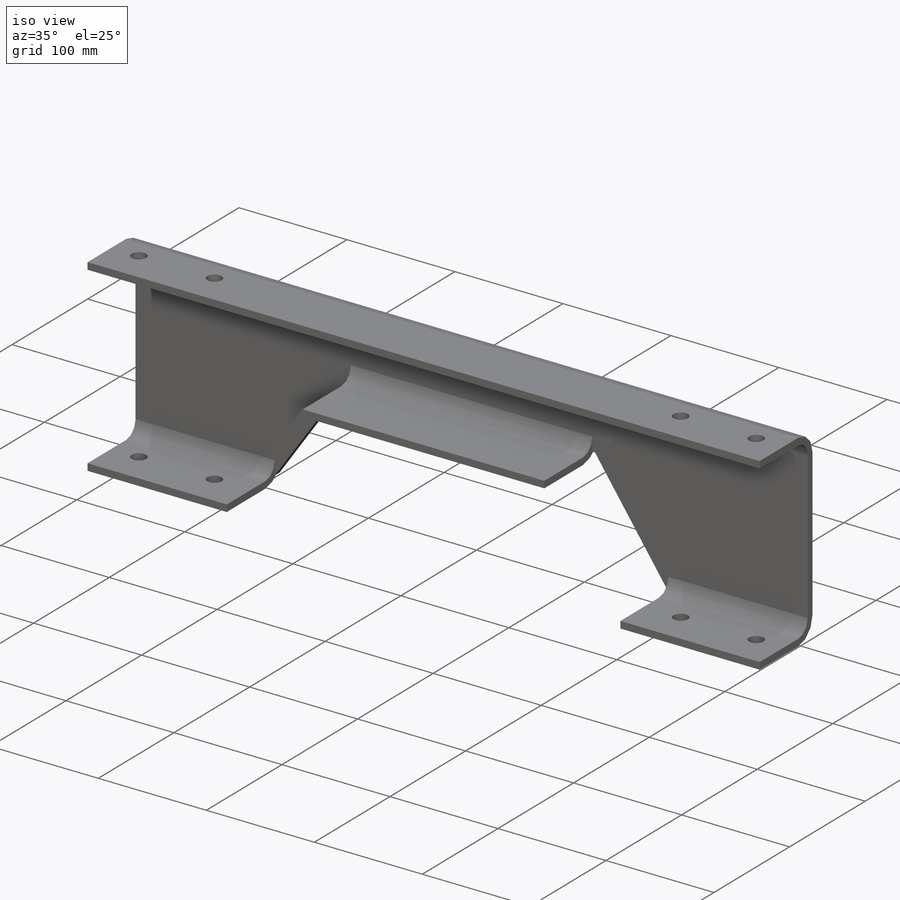
[diagram: iso view]
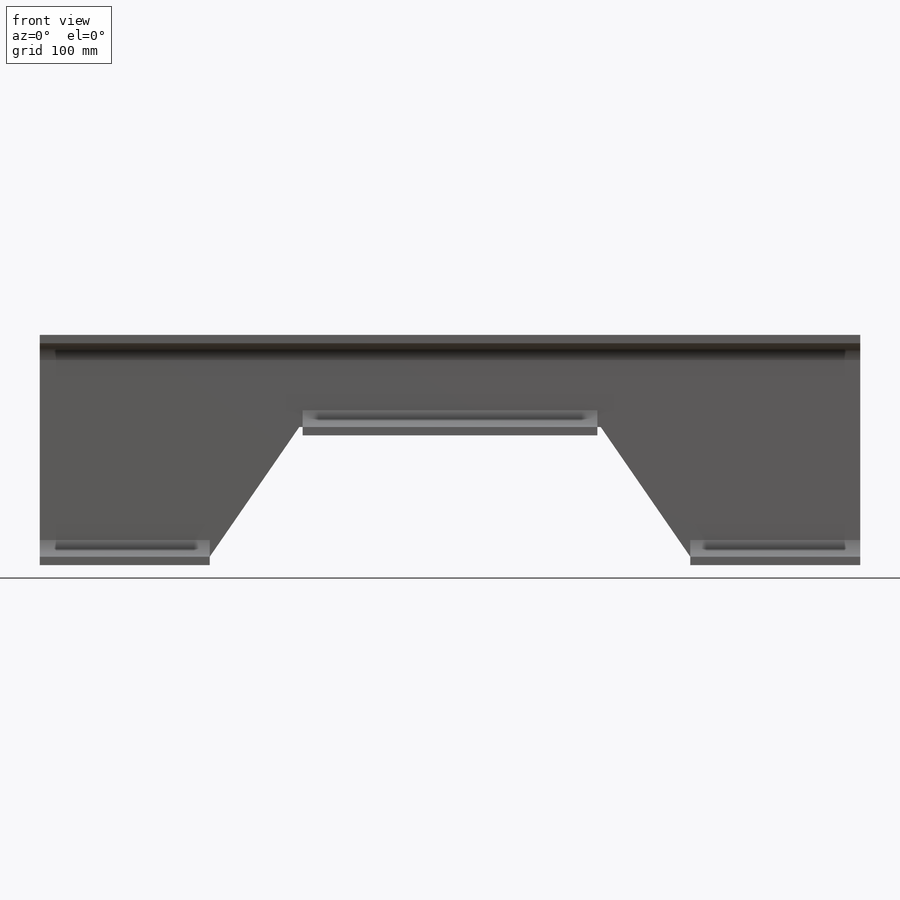
[diagram: front view]
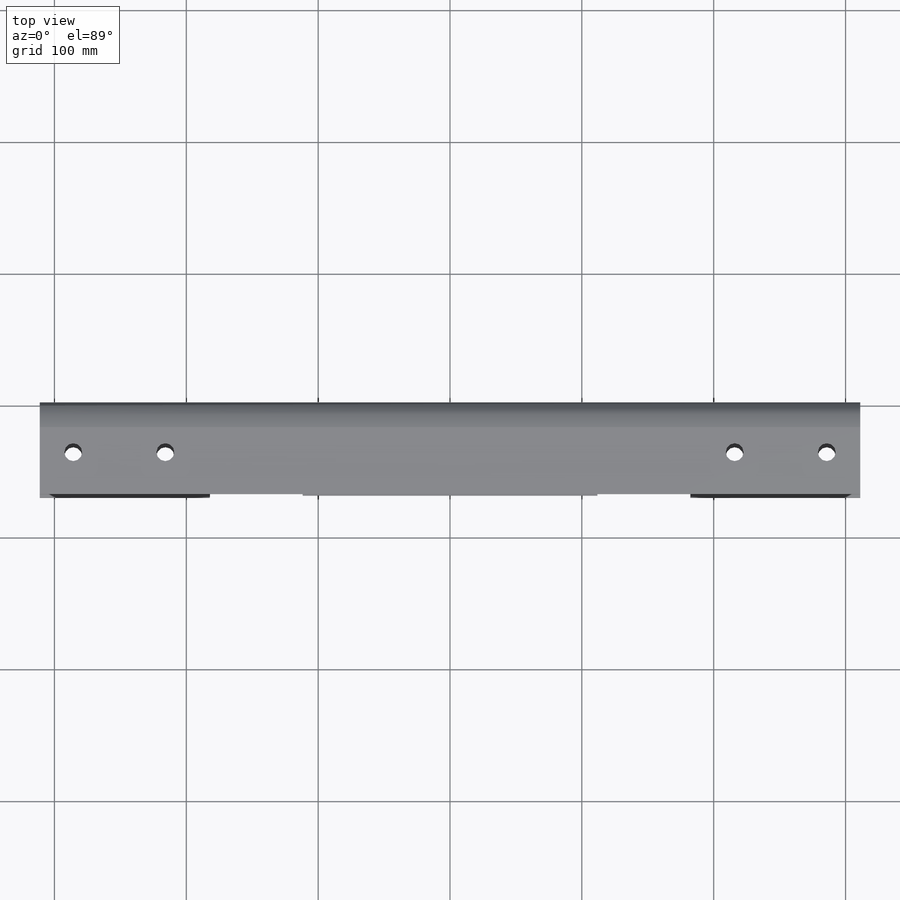
[diagram: top view]
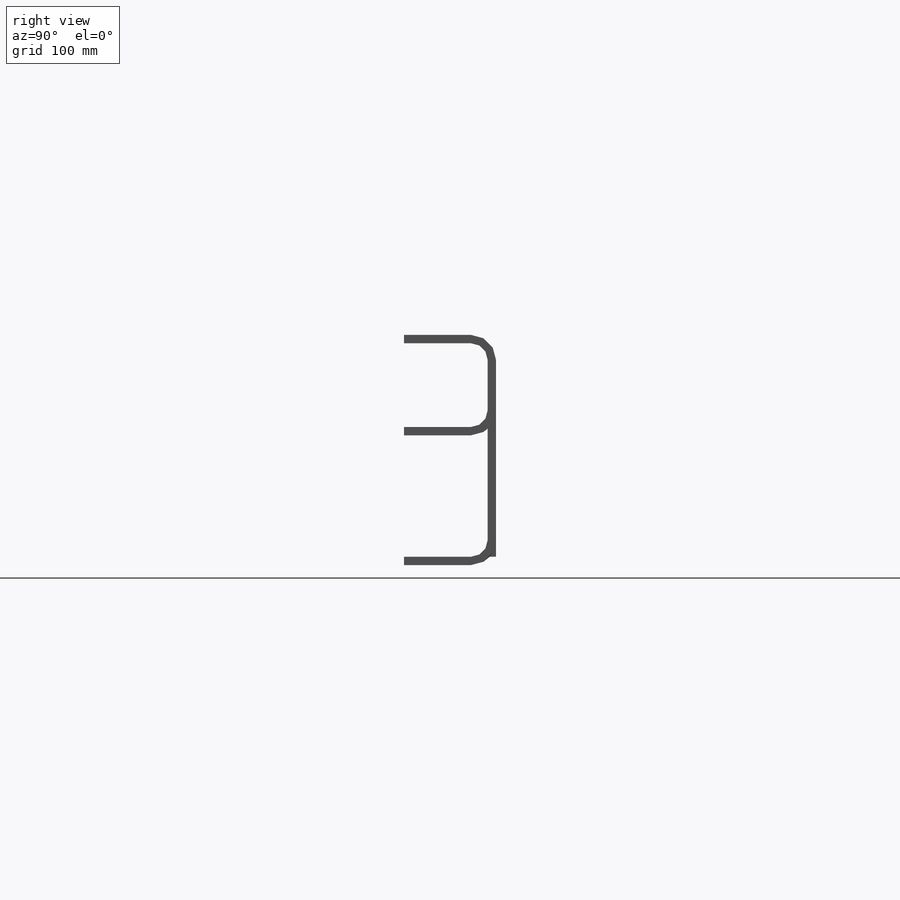
[diagram: right view]
SOLIDWORKS PART (.sldprt)
format: sldprt  version: not decoded by parser v0  size: 1,165,824 bytes
history: native  units: mm
features: sketch x11, cut_extrude x6, extrude x3, plane x3, sheet_metal_op x1, fillet x1, mirror x1 (+8 scaffold rows collapsed)
feature tree (34):
  scaffold x8  (default folders/planes/origin — collapsed)
  sketch  "Sketch1"  dims[D2=171.45mm D3=63.5mm D1=6.35mm]
  extrude  "Base-Extrude"  Depth=774.7mm
  sketch  "Sketch6"  dims[D1=114.3mm D2=222.25mm D3=444.5mm D4=228.6mm D5=63.5mm D6=6.35mm D7=6.35mm]
  cut_extrude  "Cut-Extrude3"  [1 undecoded]
  sketch  "Sketch7"  dims[D1=0.0mm D2=69.85mm]
  extrude  "Boss-Extrude1"  Depth=6.35mm
  sheet_metal_op  "Sheet-Metal1"  Thickness=6.35mm
  sketch  "Sharp-Sketch1"  dims[c1.SharpBend1=0.0 c1.D1=0.0mm c1.D4=90.0deg c1.D5=2.0 c1.D8=6.35mm c1.D9=6.35mm c1.SharpBend3=0.0 c2.D1=0.0mm c2.D4=90.0deg c2.D5=3.0 c2.D8=6.35mm c2.D9=6.35mm c2.SharpBend5=0.0 c3.D1=0.0mm c3.D4=90.0deg c3.D5=4.0 c3.D8=6.35mm c3.D9=6.35mm c4.D1=12.7mm c4.D2=500.0mm c4.D3=0.0mm c4.D4=90.0deg c4.D5=1.0 c4.D8=6.35mm c4.D9=6.35mm]
  sketch  "Sketch23"  dims[D1=~13.49375mm]
  cut_extrude  "Cut-Extrude12"  [1 undecoded]
  sketch  "Flat-Sketch1"  dims[D1=12.7mm D2=500.0mm D3=0.0mm]
  sketch  "Sketch4"  dims[c1.D4=~13.49375mm c1.D7=~12.190111mm c1.D11=~10.31875mm c1.D1=63.5mm c1.D2=266.7mm c1.D3=31.75mm c1.D5=88.9mm c1.D6=50.8mm c2.D7=50.8mm c2.D8=88.9mm c2.D9=266.7mm c2.D10=63.5mm c2.D12=114.3mm c2.D13=88.9mm c2.D14=101.6mm]
  cut_extrude  "Cut-Extrude1"  [1 undecoded]
  sketch  "Sketch5"  dims[c1.D1=127.0mm c1.D7=~13.49375mm c1.D9=63.5mm c1.D2=38.1mm c1.D3=90.4875mm c1.D4=190.5mm c1.D5=228.6mm c1.D6=266.7mm c1.D8=31.75mm c2.D4=190.5mm c2.D5=228.6mm c2.D6=266.7mm]
  cut_extrude  "Cut-Extrude2"  [1 undecoded]
  fillet  "Fillet1"  Radius=12.7mm
  plane  "Plane2"
  sketch  "Sketch10"  dims[c1.Length=60.0mm c1.D2=10.0mm c1.D3=55.0mm c1.D4=40.0mm c1.Slot width=~13.49375mm c1.Slot length=26.9875mm c1.D1=31.75mm c2.D2=88.9mm c2.D1=~35.405923mm c2.D3=~29.119744mm c2.D4=~31.266107mm c3.D1=38.1mm c3.D3=177.8mm]
  cut_extrude  "Cut-Extrude6"  [1 undecoded]
  sketch  "Sketch11"  dims[D4=~13.49375mm D1=63.5mm D2=31.75mm D3=266.7mm]
  cut_extrude  "Cut-Extrude10"  [1 undecoded]
  plane  "Plane3"
  plane  "Plane4"
  sketch  "Sketch22"  dims[c1.D1=152.4mm c1.D2=6.35mm c1.D3=1.5875mm c2.D1=1.5875mm]
  extrude  "Boss-Extrude5"  Depth=6.35mm
  mirror  "Mirror1"
decode coverage: 16 of 23 modeling features carry decoded parameters
note: ~ marks probable driven/reference dimensions
note: 6 parameter values undecoded
summary: no parameter record found for 6 features
note: suppression state not decoded; provenance and decode notes live in map.json
